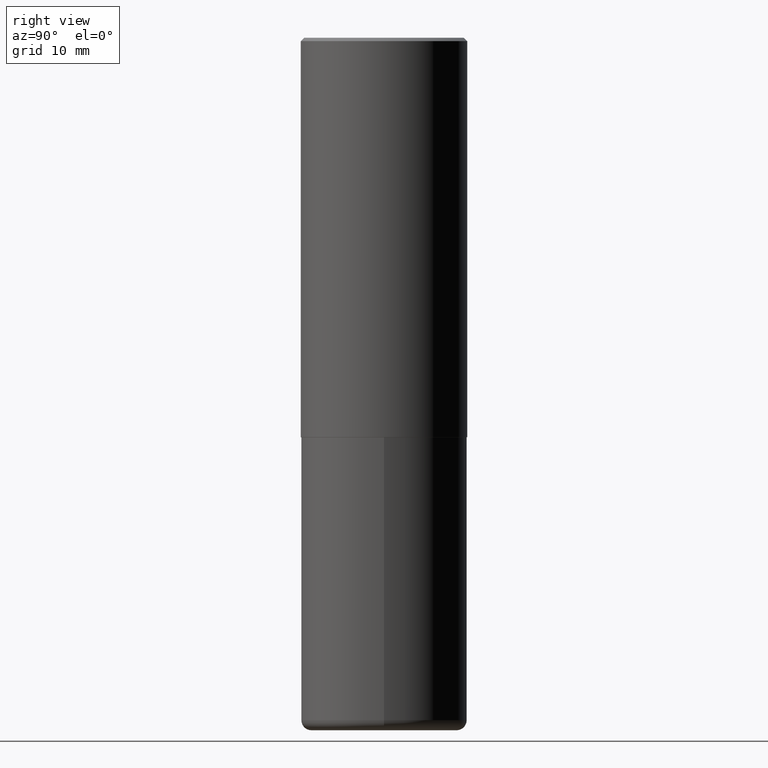
[diagram: clean part render]
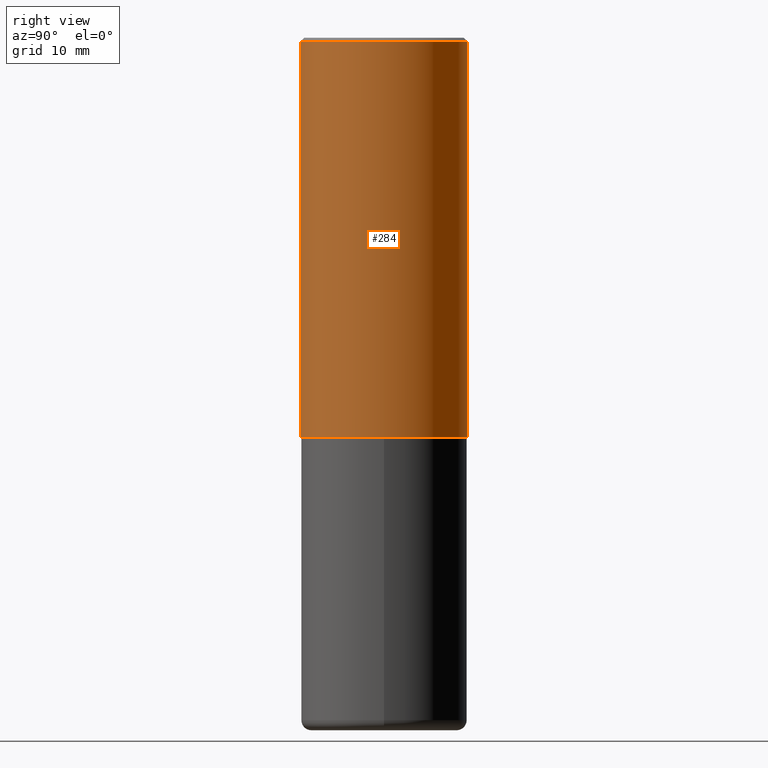
[diagram: same view with one face highlighted and labeled with its STEP entity id]
A machine part, right view. The second image highlights one B-rep face of the part: STEP entity #284.
In plain terms, the highlighted cylindrical surface (partial cylindrical patch) has radius 12.5006 mm, axis along (-0, 0, 1).
Its self-contained STEP definition (entity closure, byte-faithful):
#8 = ORIENTED_EDGE ( 'NONE', *, *, #119, .F. ) ;
#20 = DIRECTION ( 'NONE',  ( -6.982962677686265922E-15, -1.000000000000000000, 3.486624039460256937E-15 ) ) ;
#41 = FACE_OUTER_BOUND ( 'NONE', #95, .T. ) ;
#45 = CARTESIAN_POINT ( 'NONE',  ( 0.000000000000000000, 0.000000000000000000, 0.000000000000000000 ) ) ;
#54 = AXIS2_PLACEMENT_3D ( 'NONE', #45, #168, #120 ) ;
#56 = LINE ( 'NONE', #206, #123 ) ;
#77 = EDGE_CURVE ( 'NONE', #129, #286, #82, .T. ) ;
#82 = LINE ( 'NONE', #370, #340 ) ;
#95 = EDGE_LOOP ( 'NONE', ( #97, #395, #411, #8 ) ) ;
#97 = ORIENTED_EDGE ( 'NONE', *, *, #234, .T. ) ;
#107 = EDGE_CURVE ( 'NONE', #363, #286, #180, .T. ) ;
#108 = DIRECTION ( 'NONE',  ( -2.447678359454775616E-29, 3.488317132801060062E-15, 1.000000000000000000 ) ) ;
#112 = DIRECTION ( 'NONE',  ( -2.447678359454775616E-29, 3.488317132801060062E-15, 1.000000000000000000 ) ) ;
#119 = EDGE_CURVE ( 'NONE', #134, #363, #56, .T. ) ;
#120 = DIRECTION ( 'NONE',  ( -6.982962677686265922E-15, -1.000000000000000000, 3.488317132801060457E-15 ) ) ;
#123 = VECTOR ( 'NONE', #108, 39.37007874015748143 ) ;
#129 = VERTEX_POINT ( 'NONE', #177 ) ;
#134 = VERTEX_POINT ( 'NONE', #136 ) ;
#136 = CARTESIAN_POINT ( 'NONE',  ( -3.436665081823239768E-15, -0.4921500000000085251, -2.361199999999998411 ) ) ;
#137 = CYLINDRICAL_SURFACE ( 'NONE', #54, 0.4921500000000000874 ) ;
#145 = CARTESIAN_POINT ( 'NONE',  ( 4.895356718909577366E-31, -6.976634265602157842E-17, -0.02000000000000010797 ) ) ;
#168 = DIRECTION ( 'NONE',  ( -2.447678359454775616E-29, 3.488317132801060457E-15, 1.000000000000000000 ) ) ;
#173 = DIRECTION ( 'NONE',  ( -2.447678359454775616E-29, 3.488317132801060457E-15, 1.000000000000000000 ) ) ;
#177 = CARTESIAN_POINT ( 'NONE',  ( 3.496936074043363268E-15, 0.4921499999999920383, -2.361200000000001964 ) ) ;
#180 = CIRCLE ( 'NONE', #379, 0.4921499999999999764 ) ;
#206 = CARTESIAN_POINT ( 'NONE',  ( -3.436665081823296565E-15, -0.4921500000000000874, 1.716775276908042252E-15 ) ) ;
#234 = EDGE_CURVE ( 'NONE', #134, #129, #345, .T. ) ;
#267 = CARTESIAN_POINT ( 'NONE',  ( -3.376394089603258262E-15, -0.4921500000000000319, -0.01999999999999839059 ) ) ;
#268 = DIRECTION ( 'NONE',  ( -2.447678359454775616E-29, 3.488317132801060457E-15, 1.000000000000000000 ) ) ;
#271 = DIRECTION ( 'NONE',  ( -6.982962677686266711E-15, -1.000000000000000000, 3.330506545156064285E-15 ) ) ;
#284 = ADVANCED_FACE ( 'NONE', ( #41 ), #137, .T. ) ;
#286 = VERTEX_POINT ( 'NONE', #344 ) ;
#340 = VECTOR ( 'NONE', #112, 39.37007874015748143 ) ;
#344 = CARTESIAN_POINT ( 'NONE',  ( 3.436665081823296171E-15, 0.4921499999999999209, -0.02000000000000182188 ) ) ;
#345 = CIRCLE ( 'NONE', #402, 0.4921500000000002539 ) ;
#348 = CARTESIAN_POINT ( 'NONE',  ( 5.779458142344616674E-29, -8.236614413969865531E-15, -2.361200000000000188 ) ) ;
#363 = VERTEX_POINT ( 'NONE', #267 ) ;
#370 = CARTESIAN_POINT ( 'NONE',  ( 3.496936074043333291E-15, 0.4921500000000000874, -1.716775276908042252E-15 ) ) ;
#379 = AXIS2_PLACEMENT_3D ( 'NONE', #145, #173, #20 ) ;
#395 = ORIENTED_EDGE ( 'NONE', *, *, #77, .T. ) ;
#402 = AXIS2_PLACEMENT_3D ( 'NONE', #348, #268, #271 ) ;
#411 = ORIENTED_EDGE ( 'NONE', *, *, #107, .F. ) ;